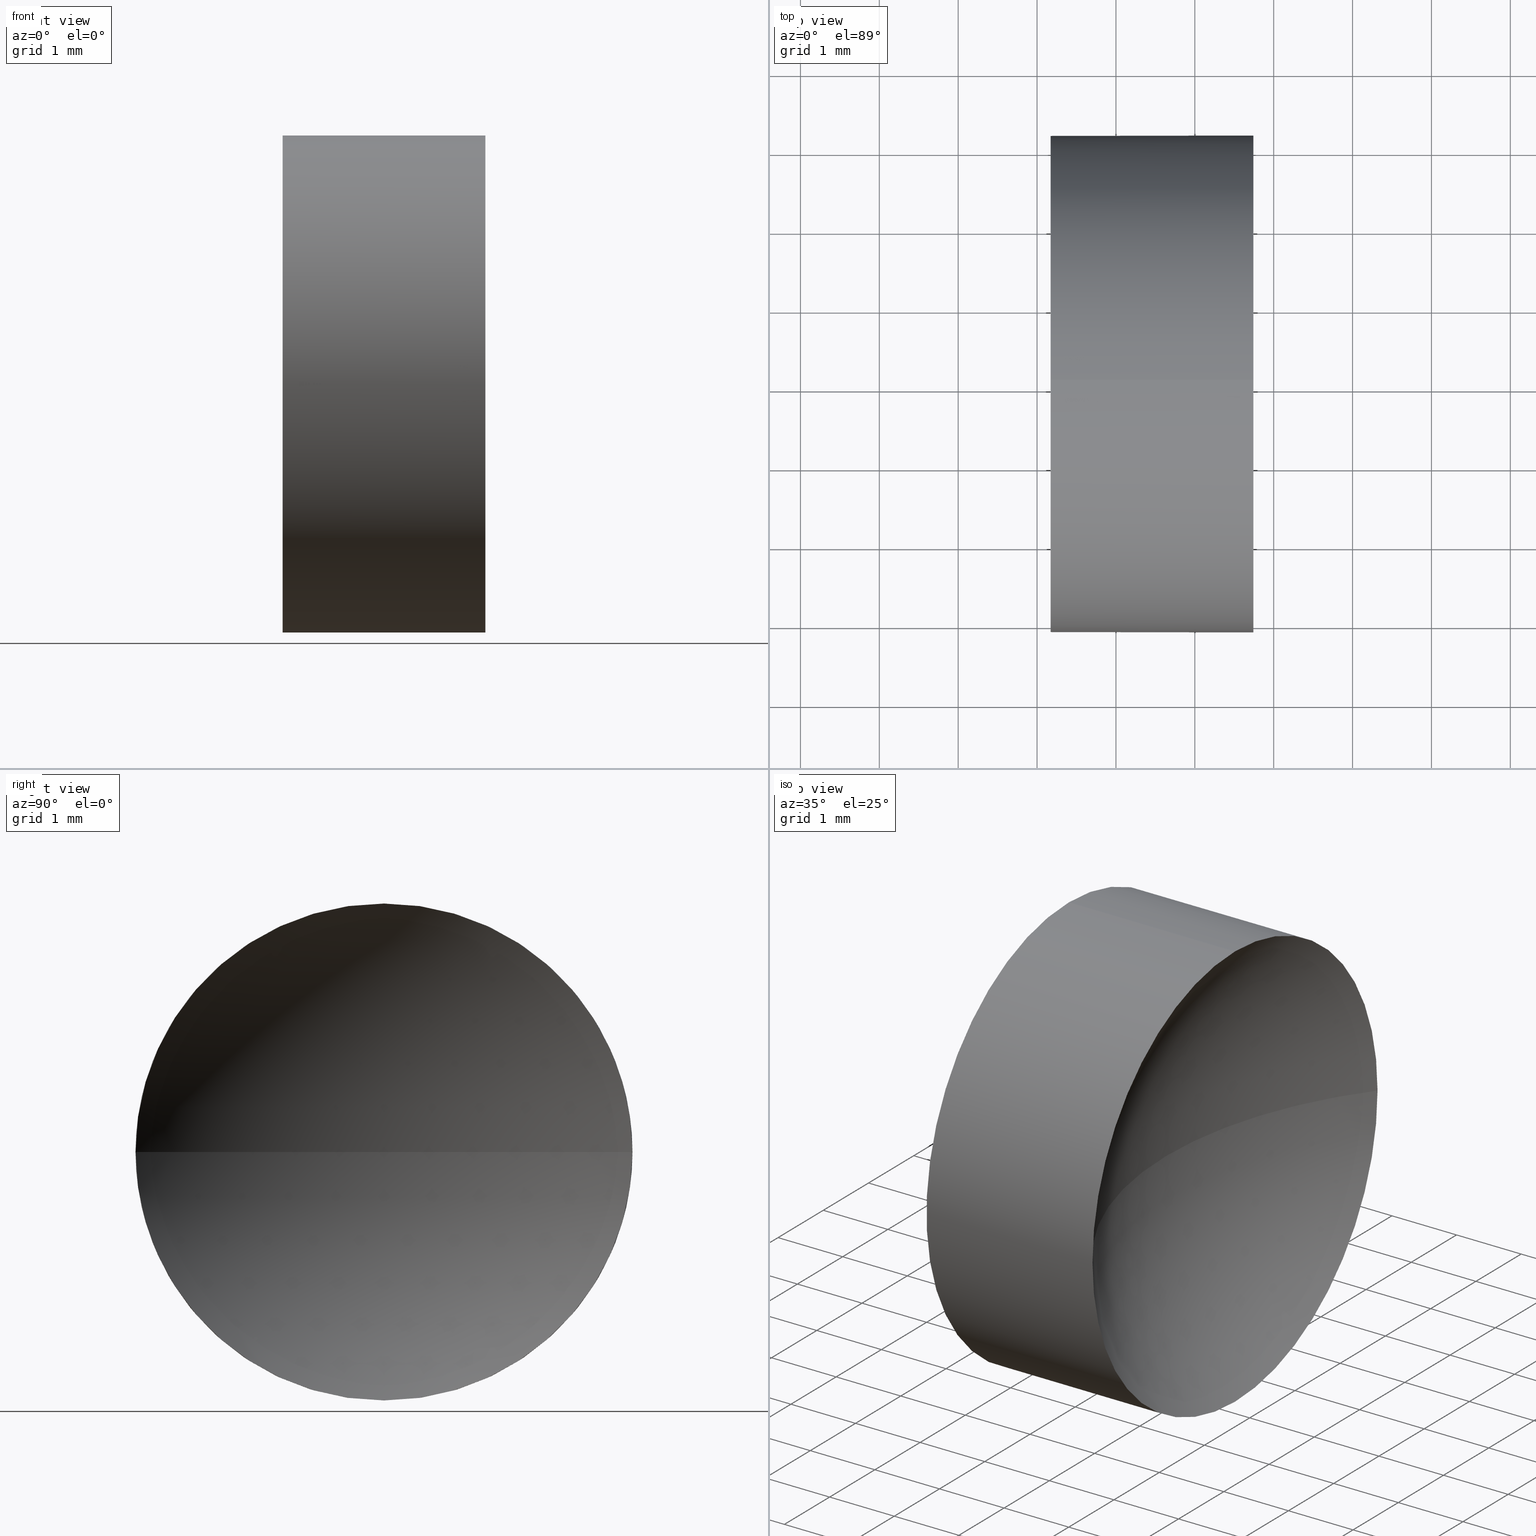
[diagram: canonical four-view strip — front | top / right | iso, engineering-drawing reading convention]
A machine part, canonical four-view strip (front | top / right | iso — engineering-drawing reading convention). The complete STEP part file that produces these views, byte-faithful:
ISO-10303-21;
HEADER;
FILE_DESCRIPTION (( 'STEP AP214' ),
    '1' );
FILE_NAME ('120004.STEP',
    '2019-06-14T02:36:16',
    ( '' ),
    ( '' ),
    'SwSTEP 2.0',
    'SolidWorks 2016',
    '' );
FILE_SCHEMA (( 'AUTOMOTIVE_DESIGN' ));
ENDSEC;

DATA;
#1 = DIRECTION ( 'NONE',  ( -1.000000000000000000, -0.0000000000000000000, -0.0000000000000000000 ) ) ;
#2 = AXIS2_PLACEMENT_3D ( 'NONE', #119, #55, #36 ) ;
#3 = ORIENTED_EDGE ( 'NONE', *, *, #152, .F. ) ;
#4 = SURFACE_STYLE_FILL_AREA ( #59 ) ;
#5 = EDGE_CURVE ( 'NONE', #137, #128, #6, .T. ) ;
#6 = CIRCLE ( 'NONE', #37, 3.150000000000001700 ) ;
#7 = DIRECTION ( 'NONE',  ( 0.0000000000000000000, 0.0000000000000000000, 1.000000000000000000 ) ) ;
#8 = CARTESIAN_POINT ( 'NONE',  ( 23.67218464702009600, 13.04452057459747900, 0.0000000000000000000 ) ) ;
#9 = DIRECTION ( 'NONE',  ( -1.000000000000000000, -0.0000000000000000000, -0.0000000000000000000 ) ) ;
#10 =( NAMED_UNIT ( * ) SI_UNIT ( $, .STERADIAN. ) SOLID_ANGLE_UNIT ( ) );
#11 = EDGE_CURVE ( 'NONE', #13, #102, #82, .T. ) ;
#12 = DIRECTION ( 'NONE',  ( 0.0000000000000000000, 0.0000000000000000000, 1.000000000000000000 ) ) ;
#13 = VERTEX_POINT ( 'NONE', #154 ) ;
#14 = DIRECTION ( 'NONE',  ( 0.0000000000000000000, 0.0000000000000000000, 1.000000000000000000 ) ) ;
#15 = FACE_OUTER_BOUND ( 'NONE', #113, .T. ) ;
#16 = CIRCLE ( 'NONE', #78, 3.150000000000001700 ) ;
#17 = CARTESIAN_POINT ( 'NONE',  ( 24.74218947520227700, 13.04452057459747900, 0.0000000000000000000 ) ) ;
#18 = CARTESIAN_POINT ( 'NONE',  ( 22.17218947520228100, 13.04452057459747900, 0.0000000000000000000 ) ) ;
#19 = CARTESIAN_POINT ( 'NONE',  ( 28.84384838200317300, 13.04452057459747900, 0.0000000000000000000 ) ) ;
#20 =( NAMED_UNIT ( * ) SI_UNIT ( $, .STERADIAN. ) SOLID_ANGLE_UNIT ( ) );
#21 = DIRECTION ( 'NONE',  ( 0.0000000000000000000, 0.0000000000000000000, 1.000000000000000000 ) ) ;
#22 = DIRECTION ( 'NONE',  ( 0.0000000000000000000, 0.0000000000000000000, 1.000000000000000000 ) ) ;
#23 = APPLICATION_PROTOCOL_DEFINITION ( 'draft international standard', 'automotive_design', 1998, #133 ) ;
#24 = PRODUCT_DEFINITION ( 'δ֪', '', #69, #115 ) ;
#25 = ORIENTED_EDGE ( 'NONE', *, *, #77, .T. ) ;
#26 = CARTESIAN_POINT ( 'NONE',  ( 22.17218947520228100, 13.04452057459747900, 0.0000000000000000000 ) ) ;
#27 = DIRECTION ( 'NONE',  ( 1.000000000000000000, 0.0000000000000000000, 0.0000000000000000000 ) ) ;
#28 = EDGE_CURVE ( 'NONE', #13, #137, #53, .T. ) ;
#29 = FACE_OUTER_BOUND ( 'NONE', #185, .T. ) ;
#30 = PRESENTATION_LAYER_ASSIGNMENT (  '', '', ( #105 ) ) ;
#31 = SPHERICAL_SURFACE ( 'NONE', #182, 5.171663734983077600 ) ;
#32 = DIRECTION ( 'NONE',  ( 0.0000000000000000000, -1.000000000000000000, 0.0000000000000000000 ) ) ;
#33 = LINE ( 'NONE', #42, #150 ) ;
#34 = AXIS2_PLACEMENT_3D ( 'NONE', #126, #142, #12 ) ;
#35 = APPLICATION_PROTOCOL_DEFINITION ( 'draft international standard', 'automotive_design', 1998, #80 ) ;
#36 = DIRECTION ( 'NONE',  ( 0.0000000000000000000, -1.000000000000000000, -1.224646799147353200E-016 ) ) ;
#37 = AXIS2_PLACEMENT_3D ( 'NONE', #26, #184, #99 ) ;
#38 = SURFACE_STYLE_USAGE ( .BOTH. , #107 ) ;
#39 =( GEOMETRIC_REPRESENTATION_CONTEXT ( 3 ) GLOBAL_UNCERTAINTY_ASSIGNED_CONTEXT ( ( #84 ) ) GLOBAL_UNIT_ASSIGNED_CONTEXT ( ( #62, #108, #20 ) ) REPRESENTATION_CONTEXT ( 'NONE', 'WORKASPACE' ) );
#40 = DIRECTION ( 'NONE',  ( 0.0000000000000000000, 0.0000000000000000000, 1.000000000000000000 ) ) ;
#41 = FACE_OUTER_BOUND ( 'NONE', #180, .T. ) ;
#42 = CARTESIAN_POINT ( 'NONE',  ( 21.22493055706841100, 13.04452057459747900, 3.150000000000001700 ) ) ;
#43 = COLOUR_RGB ( '',1.000000000000000000, 1.000000000000000000, 1.000000000000000000 ) ;
#44 =( NAMED_UNIT ( * ) SI_UNIT ( $, .STERADIAN. ) SOLID_ANGLE_UNIT ( ) );
#45 = ORIENTED_EDGE ( 'NONE', *, *, #129, .T. ) ;
#46 = CIRCLE ( 'NONE', #140, 3.150000000000001700 ) ;
#47 = ORIENTED_EDGE ( 'NONE', *, *, #77, .F. ) ;
#48 = AXIS2_PLACEMENT_3D ( 'NONE', #17, #167, #14 ) ;
#49 =( GEOMETRIC_REPRESENTATION_CONTEXT ( 3 ) GLOBAL_UNCERTAINTY_ASSIGNED_CONTEXT ( ( #165 ) ) GLOBAL_UNIT_ASSIGNED_CONTEXT ( ( #178, #94, #10 ) ) REPRESENTATION_CONTEXT ( 'NONE', 'WORKASPACE' ) );
#50 = EDGE_LOOP ( 'NONE', ( #3, #170, #158, #141 ) ) ;
#51 = CARTESIAN_POINT ( 'NONE',  ( 24.74218947520227700, 16.19452057459747600, 3.857637417314163700E-016 ) ) ;
#52 = DIRECTION ( 'NONE',  ( -1.000000000000000000, -0.0000000000000000000, -0.0000000000000000000 ) ) ;
#53 = LINE ( 'NONE', #151, #76 ) ;
#54 = DIRECTION ( 'NONE',  ( 0.0000000000000000000, 0.0000000000000000000, 1.000000000000000000 ) ) ;
#55 = DIRECTION ( 'NONE',  ( 0.0000000000000000000, -1.224646799147353200E-016, 1.000000000000000000 ) ) ;
#56 = UNCERTAINTY_MEASURE_WITH_UNIT (LENGTH_MEASURE( 1.000000000000000100E-005 ), #122, 'distance_accuracy_value', 'NONE');
#57 = SURFACE_STYLE_FILL_AREA ( #66 ) ;
#58 = PRODUCT ( '120004', '120004', '', ( #70 ) ) ;
#59 = FILL_AREA_STYLE ('',( #111 ) ) ;
#60 = PRESENTATION_STYLE_ASSIGNMENT (( #38 ) ) ;
#61 = ORIENTED_EDGE ( 'NONE', *, *, #96, .T. ) ;
#62 =( LENGTH_UNIT ( ) NAMED_UNIT ( * ) SI_UNIT ( .MILLI., .METRE. ) );
#63 = CIRCLE ( 'NONE', #157, 5.171663734983077600 ) ;
#64 = CARTESIAN_POINT ( 'NONE',  ( 21.22493055706841100, 13.04452057459747900, 0.0000000000000000000 ) ) ;
#65 = ADVANCED_FACE ( 'NONE', ( #41 ), #72, .F. ) ;
#66 = FILL_AREA_STYLE ('',( #81 ) ) ;
#67 = CIRCLE ( 'NONE', #2, 5.171663734983077600 ) ;
#68 = AXIS2_PLACEMENT_3D ( 'NONE', #174, #83, #176 ) ;
#69 = PRODUCT_DEFINITION_FORMATION_WITH_SPECIFIED_SOURCE ( '�κ�', '', #58, .NOT_KNOWN. ) ;
#70 = PRODUCT_CONTEXT ( 'NONE', #80, 'mechanical' ) ;
#71 = ORIENTED_EDGE ( 'NONE', *, *, #171, .F. ) ;
#72 = PLANE ( 'NONE',  #147 ) ;
#73 = SURFACE_SIDE_STYLE ('',( #4 ) ) ;
#74 = ORIENTED_EDGE ( 'NONE', *, *, #11, .T. ) ;
#75 =( NAMED_UNIT ( * ) PLANE_ANGLE_UNIT ( ) SI_UNIT ( $, .RADIAN. ) );
#76 = VECTOR ( 'NONE', #86, 1000.000000000000000 ) ;
#77 = EDGE_CURVE ( 'NONE', #156, #128, #33, .T. ) ;
#78 = AXIS2_PLACEMENT_3D ( 'NONE', #146, #91, #54 ) ;
#79 = CARTESIAN_POINT ( 'NONE',  ( 24.74218947520227700, 13.04452057459747900, 0.0000000000000000000 ) ) ;
#80 = APPLICATION_CONTEXT ( 'automotive_design' ) ;
#81 = FILL_AREA_STYLE_COLOUR ( '', #134 ) ;
#82 = CIRCLE ( 'NONE', #48, 3.150000000000001700 ) ;
#83 = DIRECTION ( 'NONE',  ( -1.000000000000000000, -0.0000000000000000000, -0.0000000000000000000 ) ) ;
#84 = UNCERTAINTY_MEASURE_WITH_UNIT (LENGTH_MEASURE( 1.000000000000000100E-005 ), #62, 'distance_accuracy_value', 'NONE');
#85 = CLOSED_SHELL ( 'NONE', ( #149, #160, #125, #164, #65 ) ) ;
#86 = DIRECTION ( 'NONE',  ( -1.000000000000000000, -0.0000000000000000000, -0.0000000000000000000 ) ) ;
#87 = ORIENTED_EDGE ( 'NONE', *, *, #11, .F. ) ;
#88 = MANIFOLD_SOLID_BREP ( '��ת1', #85 ) ;
#89 = AXIS2_PLACEMENT_3D ( 'NONE', #130, #9, #21 ) ;
#90 = CYLINDRICAL_SURFACE ( 'NONE', #132, 3.150000000000001700 ) ;
#91 = DIRECTION ( 'NONE',  ( -1.000000000000000000, -0.0000000000000000000, -0.0000000000000000000 ) ) ;
#92 = CARTESIAN_POINT ( 'NONE',  ( 28.84384838200317300, 13.04452057459747900, 0.0000000000000000000 ) ) ;
#93 = ORIENTED_EDGE ( 'NONE', *, *, #152, .T. ) ;
#94 =( NAMED_UNIT ( * ) PLANE_ANGLE_UNIT ( ) SI_UNIT ( $, .RADIAN. ) );
#95 = DIRECTION ( 'NONE',  ( 0.0000000000000000000, -1.000000000000000000, 0.0000000000000000000 ) ) ;
#96 = EDGE_CURVE ( 'NONE', #102, #156, #139, .T. ) ;
#97 = PRODUCT_DEFINITION_SHAPE ( 'NONE', 'NONE',  #24 ) ;
#98 = VERTEX_POINT ( 'NONE', #8 ) ;
#99 = DIRECTION ( 'NONE',  ( 0.0000000000000000000, 0.0000000000000000000, 1.000000000000000000 ) ) ;
#100 = SURFACE_STYLE_USAGE ( .BOTH. , #73 ) ;
#101 = CYLINDRICAL_SURFACE ( 'NONE', #89, 3.150000000000001700 ) ;
#102 = VERTEX_POINT ( 'NONE', #144 ) ;
#103 = EDGE_CURVE ( 'NONE', #102, #98, #63, .T. ) ;
#104 = ORIENTED_EDGE ( 'NONE', *, *, #171, .T. ) ;
#105 = STYLED_ITEM ( 'NONE', ( #60 ), #169 ) ;
#106 = SHAPE_DEFINITION_REPRESENTATION ( #97, #169 ) ;
#107 = SURFACE_SIDE_STYLE ('',( #57 ) ) ;
#108 =( NAMED_UNIT ( * ) PLANE_ANGLE_UNIT ( ) SI_UNIT ( $, .RADIAN. ) );
#109 = FACE_OUTER_BOUND ( 'NONE', #50, .T. ) ;
#110 = ORIENTED_EDGE ( 'NONE', *, *, #28, .F. ) ;
#111 = FILL_AREA_STYLE_COLOUR ( '', #43 ) ;
#112 = PRESENTATION_STYLE_ASSIGNMENT (( #100 ) ) ;
#113 = EDGE_LOOP ( 'NONE', ( #110, #74, #61, #25, #135 ) ) ;
#114 = PRODUCT_RELATED_PRODUCT_CATEGORY ( 'part', '', ( #58 ) ) ;
#115 = PRODUCT_DEFINITION_CONTEXT ( 'detailed design', #133, 'design' ) ;
#116 = ORIENTED_EDGE ( 'NONE', *, *, #138, .F. ) ;
#117 = CARTESIAN_POINT ( 'NONE',  ( 24.74218947520227700, 13.04452057459747900, 3.150000000000001700 ) ) ;
#118 = DIRECTION ( 'NONE',  ( -1.000000000000000000, 0.0000000000000000000, 0.0000000000000000000 ) ) ;
#119 = CARTESIAN_POINT ( 'NONE',  ( 28.84384838200317300, 13.04452057459747900, 0.0000000000000000000 ) ) ;
#120 = AXIS2_PLACEMENT_3D ( 'NONE', #179, #40, #148 ) ;
#121 = ORIENTED_EDGE ( 'NONE', *, *, #138, .T. ) ;
#122 =( LENGTH_UNIT ( ) NAMED_UNIT ( * ) SI_UNIT ( .MILLI., .METRE. ) );
#123 = ORIENTED_EDGE ( 'NONE', *, *, #28, .T. ) ;
#124 = AXIS2_PLACEMENT_3D ( 'NONE', #92, #22, #32 ) ;
#125 = ADVANCED_FACE ( 'NONE', ( #109 ), #31, .F. ) ;
#126 = CARTESIAN_POINT ( 'NONE',  ( 24.74218947520227700, 13.04452057459747900, 0.0000000000000000000 ) ) ;
#127 = DIRECTION ( 'NONE',  ( 0.0000000000000000000, 0.0000000000000000000, 1.000000000000000000 ) ) ;
#128 = VERTEX_POINT ( 'NONE', #153 ) ;
#129 = EDGE_CURVE ( 'NONE', #156, #175, #168, .T. ) ;
#130 = CARTESIAN_POINT ( 'NONE',  ( 21.22493055706841100, 13.04452057459747900, 0.0000000000000000000 ) ) ;
#131 = FACE_OUTER_BOUND ( 'NONE', #183, .T. ) ;
#132 = AXIS2_PLACEMENT_3D ( 'NONE', #64, #161, #127 ) ;
#133 = APPLICATION_CONTEXT ( 'automotive_design' ) ;
#134 = COLOUR_RGB ( '',1.000000000000000000, 1.000000000000000000, 1.000000000000000000 ) ;
#135 = ORIENTED_EDGE ( 'NONE', *, *, #5, .F. ) ;
#136 = STYLED_ITEM ( 'NONE', ( #112 ), #88 ) ;
#137 = VERTEX_POINT ( 'NONE', #143 ) ;
#138 = EDGE_CURVE ( 'NONE', #128, #137, #16, .T. ) ;
#139 = CIRCLE ( 'NONE', #68, 3.150000000000001700 ) ;
#140 = AXIS2_PLACEMENT_3D ( 'NONE', #79, #52, #163 ) ;
#141 = ORIENTED_EDGE ( 'NONE', *, *, #103, .T. ) ;
#142 = DIRECTION ( 'NONE',  ( -1.000000000000000000, -0.0000000000000000000, -0.0000000000000000000 ) ) ;
#143 = CARTESIAN_POINT ( 'NONE',  ( 22.17218947520228100, 13.04452057459747900, -3.150000000000001700 ) ) ;
#144 = CARTESIAN_POINT ( 'NONE',  ( 24.74218947520227700, 9.894520574597477100, 0.0000000000000000000 ) ) ;
#145 = ORIENTED_EDGE ( 'NONE', *, *, #103, .F. ) ;
#146 = CARTESIAN_POINT ( 'NONE',  ( 22.17218947520228100, 13.04452057459747900, 0.0000000000000000000 ) ) ;
#147 = AXIS2_PLACEMENT_3D ( 'NONE', #18, #27, #186 ) ;
#148 = DIRECTION ( 'NONE',  ( 1.000000000000000000, 0.0000000000000000000, 0.0000000000000000000 ) ) ;
#149 = ADVANCED_FACE ( 'NONE', ( #131 ), #101, .T. ) ;
#150 = VECTOR ( 'NONE', #1, 1000.000000000000000 ) ;
#151 = CARTESIAN_POINT ( 'NONE',  ( 21.22493055706841100, 13.04452057459747900, -3.150000000000001700 ) ) ;
#152 = EDGE_CURVE ( 'NONE', #175, #98, #67, .T. ) ;
#153 = CARTESIAN_POINT ( 'NONE',  ( 22.17218947520228100, 13.04452057459747900, 3.150000000000001700 ) ) ;
#154 = CARTESIAN_POINT ( 'NONE',  ( 24.74218947520227700, 13.04452057459747900, -3.150000000000001700 ) ) ;
#155 = MECHANICAL_DESIGN_GEOMETRIC_PRESENTATION_REPRESENTATION (  '', ( #105 ), #49 ) ;
#156 = VERTEX_POINT ( 'NONE', #117 ) ;
#157 = AXIS2_PLACEMENT_3D ( 'NONE', #159, #162, #118 ) ;
#158 = ORIENTED_EDGE ( 'NONE', *, *, #96, .F. ) ;
#159 = CARTESIAN_POINT ( 'NONE',  ( 28.84384838200317300, 13.04452057459747900, 0.0000000000000000000 ) ) ;
#160 = ADVANCED_FACE ( 'NONE', ( #29 ), #173, .F. ) ;
#161 = DIRECTION ( 'NONE',  ( -1.000000000000000000, -0.0000000000000000000, -0.0000000000000000000 ) ) ;
#162 = DIRECTION ( 'NONE',  ( 0.0000000000000000000, 0.0000000000000000000, -1.000000000000000000 ) ) ;
#163 = DIRECTION ( 'NONE',  ( 0.0000000000000000000, 0.0000000000000000000, 1.000000000000000000 ) ) ;
#164 = ADVANCED_FACE ( 'NONE', ( #15 ), #90, .T. ) ;
#165 = UNCERTAINTY_MEASURE_WITH_UNIT (LENGTH_MEASURE( 1.000000000000000100E-005 ), #178, 'distance_accuracy_value', 'NONE');
#166 = ORIENTED_EDGE ( 'NONE', *, *, #5, .T. ) ;
#167 = DIRECTION ( 'NONE',  ( -1.000000000000000000, -0.0000000000000000000, -0.0000000000000000000 ) ) ;
#168 = CIRCLE ( 'NONE', #34, 3.150000000000001700 ) ;
#169 = ADVANCED_BREP_SHAPE_REPRESENTATION ( '120004', ( #88, #120 ), #39 ) ;
#170 = ORIENTED_EDGE ( 'NONE', *, *, #129, .F. ) ;
#171 = EDGE_CURVE ( 'NONE', #175, #13, #46, .T. ) ;
#172 = PRESENTATION_LAYER_ASSIGNMENT (  '', '', ( #136 ) ) ;
#173 = SPHERICAL_SURFACE ( 'NONE', #124, 5.171663734983077600 ) ;
#174 = CARTESIAN_POINT ( 'NONE',  ( 24.74218947520227700, 13.04452057459747900, 0.0000000000000000000 ) ) ;
#175 = VERTEX_POINT ( 'NONE', #51 ) ;
#176 = DIRECTION ( 'NONE',  ( 0.0000000000000000000, 0.0000000000000000000, 1.000000000000000000 ) ) ;
#177 = MECHANICAL_DESIGN_GEOMETRIC_PRESENTATION_REPRESENTATION (  '', ( #136 ), #181 ) ;
#178 =( LENGTH_UNIT ( ) NAMED_UNIT ( * ) SI_UNIT ( .MILLI., .METRE. ) );
#179 = CARTESIAN_POINT ( 'NONE',  ( 0.0000000000000000000, 0.0000000000000000000, 0.0000000000000000000 ) ) ;
#180 = EDGE_LOOP ( 'NONE', ( #121, #166 ) ) ;
#181 =( GEOMETRIC_REPRESENTATION_CONTEXT ( 3 ) GLOBAL_UNCERTAINTY_ASSIGNED_CONTEXT ( ( #56 ) ) GLOBAL_UNIT_ASSIGNED_CONTEXT ( ( #122, #75, #44 ) ) REPRESENTATION_CONTEXT ( 'NONE', 'WORKASPACE' ) );
#182 = AXIS2_PLACEMENT_3D ( 'NONE', #19, #7, #95 ) ;
#183 = EDGE_LOOP ( 'NONE', ( #104, #123, #116, #47, #45 ) ) ;
#184 = DIRECTION ( 'NONE',  ( -1.000000000000000000, -0.0000000000000000000, -0.0000000000000000000 ) ) ;
#185 = EDGE_LOOP ( 'NONE', ( #71, #93, #145, #87 ) ) ;
#186 = DIRECTION ( 'NONE',  ( 0.0000000000000000000, 0.0000000000000000000, -1.000000000000000000 ) ) ;
ENDSEC;
END-ISO-10303-21;
